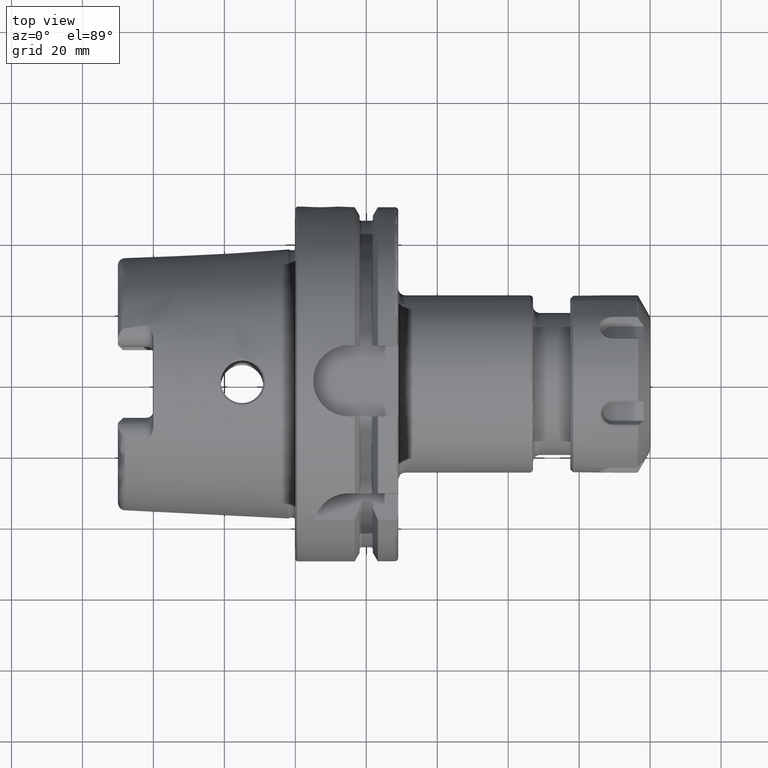
[diagram: clean part render]
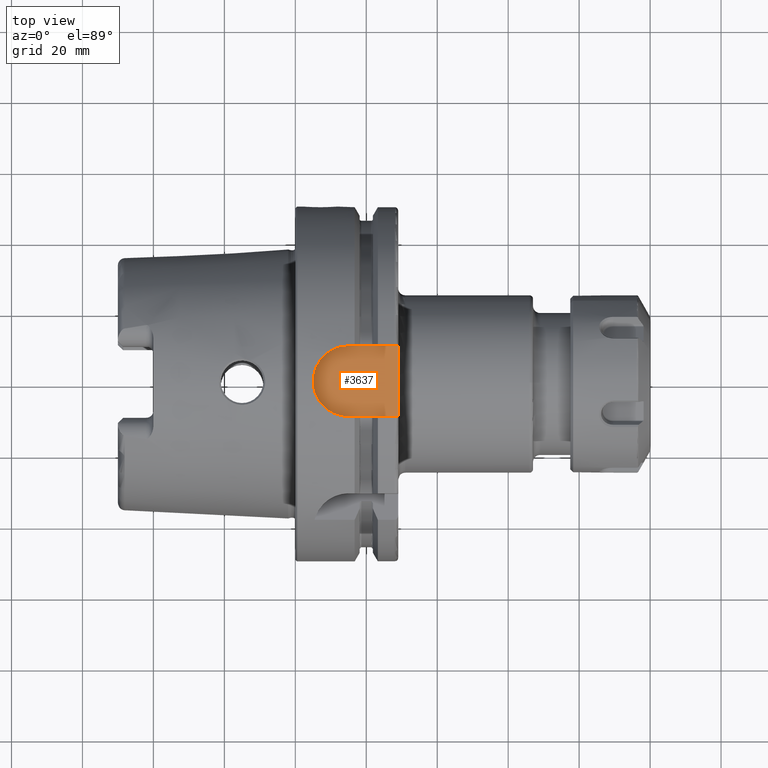
[diagram: same view with one face highlighted and labeled with its STEP entity id]
A machine part, top view. The second image highlights one B-rep face of the part: STEP entity #3637.
In plain terms, the highlighted planar face has unit normal (0, 0, 1).
Its self-contained STEP definition (entity closure, byte-faithful):
#252=PLANE('',#4013);
#413=FACE_OUTER_BOUND('',#626,.T.);
#626=EDGE_LOOP('',(#2809,#2810,#2811,#2812));
#783=LINE('',#5440,#974);
#861=LINE('',#6750,#1052);
#864=LINE('',#6757,#1055);
#974=VECTOR('',#4342,10.);
#1052=VECTOR('',#4726,10.);
#1055=VECTOR('',#4735,10.);
#1257=CIRCLE('',#4011,10.);
#1420=VERTEX_POINT('',#5437);
#1421=VERTEX_POINT('',#5439);
#1592=VERTEX_POINT('',#6749);
#1593=VERTEX_POINT('',#6753);
#1810=EDGE_CURVE('',#1420,#1421,#783,.T.);
#2044=EDGE_CURVE('',#1592,#1421,#861,.T.);
#2046=EDGE_CURVE('',#1593,#1592,#1257,.T.);
#2048=EDGE_CURVE('',#1420,#1593,#864,.T.);
#2809=ORIENTED_EDGE('',*,*,#2048,.T.);
#2810=ORIENTED_EDGE('',*,*,#2046,.T.);
#2811=ORIENTED_EDGE('',*,*,#2044,.T.);
#2812=ORIENTED_EDGE('',*,*,#1810,.F.);
#3637=ADVANCED_FACE('',(#413),#252,.T.);
#4011=AXIS2_PLACEMENT_3D('',#6754,#4730,#4731);
#4013=AXIS2_PLACEMENT_3D('',#6758,#4736,#4737);
#4342=DIRECTION('',(0.,-1.,0.));
#4726=DIRECTION('',(1.,7.93016446160826E-17,0.));
#4730=DIRECTION('center_axis',(0.,0.,1.));
#4731=DIRECTION('ref_axis',(0.,1.,0.));
#4735=DIRECTION('',(-1.,0.,0.));
#4736=DIRECTION('center_axis',(0.,0.,1.));
#4737=DIRECTION('ref_axis',(1.,0.,0.));
#5437=CARTESIAN_POINT('',(29.,10.,44.));
#5439=CARTESIAN_POINT('',(29.,-10.,44.));
#5440=CARTESIAN_POINT('',(29.,0.,44.));
#6749=CARTESIAN_POINT('',(15.,-10.,44.));
#6750=CARTESIAN_POINT('',(15.,-10.,44.));
#6753=CARTESIAN_POINT('',(15.,10.,44.));
#6754=CARTESIAN_POINT('Origin',(15.,0.,44.));
#6757=CARTESIAN_POINT('',(29.,10.,44.));
#6758=CARTESIAN_POINT('Origin',(17.,0.,44.));